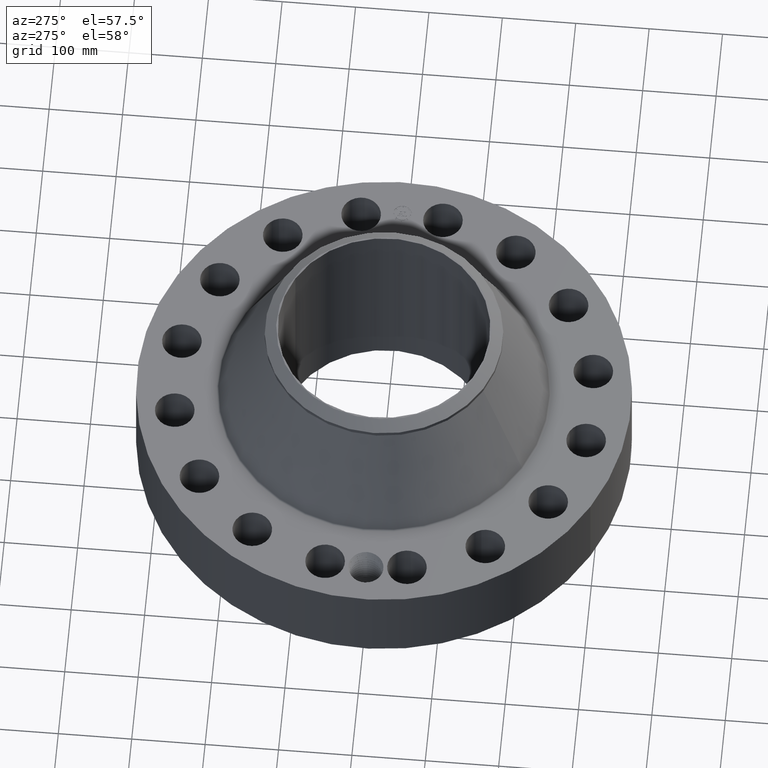
[diagram: clean part render]
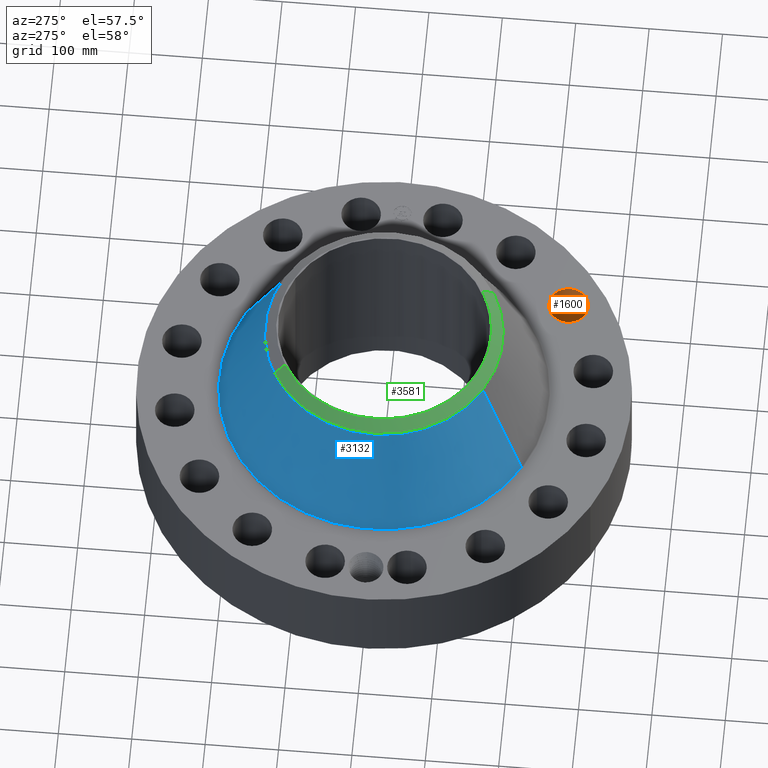
[diagram: same view with three faces highlighted in distinct colors, each labeled with its STEP entity id]
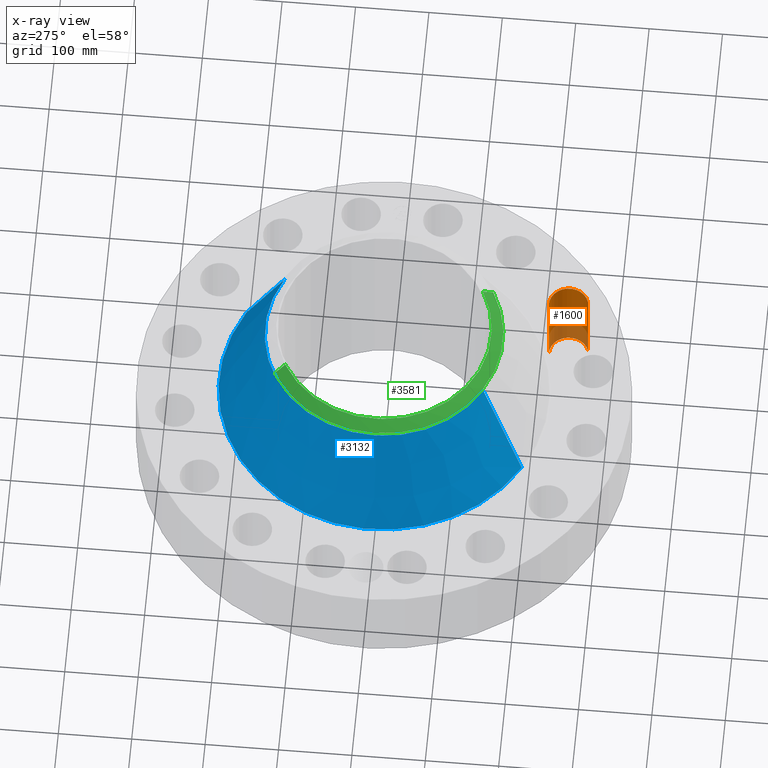
[diagram: x-ray of the same camera — body ghosted, the three highlighted faces saturated]
A machine part, auxiliary view with three faces highlighted in distinct colors.
The next image is the same camera in x-ray (body ghosted, the three faces saturated) — at least one of them is partly hidden behind the body in this view.
Their STEP definitions:

[orange] entity #1600 — the highlighted cylindrical surface (edge-blend (fillet) strip) has radius 26.924 mm, axis along (0, -0, -1).
#298=AXIS2_PLACEMENT_3D('Circle Axis2P3D',#296,#297,$) ;
#780=AXIS2_PLACEMENT_3D('Circle Axis2P3D',#778,#779,$) ;
#1582=AXIS2_PLACEMENT_3D('Cylinder Axis2P3D',#1579,#1580,#1581) ;
#296=CARTESIAN_POINT('Axis2P3D Location',(6.2501651215,-9.35403313844,0.250000000001)) ;
#300=CARTESIAN_POINT('Vertex',(5.95173321848,-8.33691053065,0.250000000001)) ;
#302=CARTESIAN_POINT('Vertex',(6.54859702451,-10.3711557462,0.250000000001)) ;
#773=CARTESIAN_POINT('Vertex',(6.54859702451,-10.3711557462,5.13000000002)) ;
#775=CARTESIAN_POINT('Vertex',(5.95173321848,-8.33691053065,5.13000000002)) ;
#778=CARTESIAN_POINT('Axis2P3D Location',(6.2501651215,-9.35403313844,5.13000000002)) ;
#1579=CARTESIAN_POINT('Axis2P3D Location',(6.2501651215,-9.35403313844,5.12606299215)) ;
#1584=CARTESIAN_POINT('Line Origine',(5.95173321848,-8.33691053065,2.69000000001)) ;
#1589=CARTESIAN_POINT('Line Origine',(6.54859702451,-10.3711557462,2.69000000001)) ;
#297=DIRECTION('Axis2P3D Direction',(0.,0.,-0.0393700787402)) ;
#779=DIRECTION('Axis2P3D Direction',(0.,0.,-0.0393700787402)) ;
#1580=DIRECTION('Axis2P3D Direction',(0.,-0.,-0.0393700787402)) ;
#1581=DIRECTION('Axis2P3D XDirection',(0.0110842335096,-0.0377775444876,0.)) ;
#1585=DIRECTION('Vector Direction',(0.,0.,-0.0393700787402)) ;
#1590=DIRECTION('Vector Direction',(0.,0.,-0.0393700787402)) ;
#1586=VECTOR('Line Direction',#1585,0.0393700787402) ;
#1591=VECTOR('Line Direction',#1590,0.0393700787402) ;
#1595=ORIENTED_EDGE('',*,*,#1588,.F.) ;
#1596=ORIENTED_EDGE('',*,*,#304,.T.) ;
#1597=ORIENTED_EDGE('',*,*,#1593,.T.) ;
#1598=ORIENTED_EDGE('',*,*,#782,.F.) ;
#1600=ADVANCED_FACE('PartBody',(#1599),#1583,.F.) ;
#299=CIRCLE('generated circle',#298,1.06) ;
#781=CIRCLE('generated circle',#780,1.06) ;
#1583=CYLINDRICAL_SURFACE('generated cylinder',#1582,1.06) ;
#304=EDGE_CURVE('',#301,#303,#299,.T.) ;
#782=EDGE_CURVE('',#776,#774,#781,.T.) ;
#1588=EDGE_CURVE('',#301,#776,#1587,.F.) ;
#1593=EDGE_CURVE('',#303,#774,#1592,.F.) ;
#1594=EDGE_LOOP('',(#1595,#1596,#1597,#1598)) ;
#1599=FACE_OUTER_BOUND('',#1594,.T.) ;
#1587=LINE('Line',#1584,#1586) ;
#1592=LINE('Line',#1589,#1591) ;
#301=VERTEX_POINT('',#300) ;
#303=VERTEX_POINT('',#302) ;
#774=VERTEX_POINT('',#773) ;
#776=VERTEX_POINT('',#775) ;

[blue] entity #3132 — the highlighted conical surface has half-angle 24.302 deg.
#2378=AXIS2_PLACEMENT_3D('Circle Axis2P3D',#2376,#2377,$) ;
#3093=AXIS2_PLACEMENT_3D('Cone Axis2P3D',#3090,#3091,#3092) ;
#3123=AXIS2_PLACEMENT_3D('Circle Axis2P3D',#3121,#3122,$) ;
#2354=CARTESIAN_POINT('Vertex',(4.23961428836,7.76056189963,5.20061377058)) ;
#2361=CARTESIAN_POINT('Vertex',(-4.23961428836,-7.76056189963,5.20061377058)) ;
#2376=CARTESIAN_POINT('Axis2P3D Location',(0.,0.,5.20061377058)) ;
#3090=CARTESIAN_POINT('Axis2P3D Location',(0.,0.,10.6662780077)) ;
#3095=CARTESIAN_POINT('Line Origine',(3.64797604848,6.67757536585,7.93344588916)) ;
#3099=CARTESIAN_POINT('Vertex',(3.05633780861,5.59458883207,10.6662780077)) ;
#3106=CARTESIAN_POINT('Vertex',(-3.05633780861,-5.59458883207,10.6662780077)) ;
#3109=CARTESIAN_POINT('Line Origine',(-3.64797604848,-6.67757536585,7.93344588916)) ;
#3121=CARTESIAN_POINT('Axis2P3D Location',(0.,0.,10.6662780077)) ;
#2377=DIRECTION('Axis2P3D Direction',(0.,0.,-0.0393700787402)) ;
#3091=DIRECTION('Axis2P3D Direction',(0.,0.,-0.0393700787402)) ;
#3092=DIRECTION('Axis2P3D XDirection',(-0.0188750212049,-0.0345504945626,0.)) ;
#3096=DIRECTION('Vector Direction',(0.00776805106537,0.0142193220968,-0.0358813511697)) ;
#3110=DIRECTION('Vector Direction',(-0.00776805106537,-0.0142193220968,-0.0358813511697)) ;
#3122=DIRECTION('Axis2P3D Direction',(0.,0.,-0.0393700787402)) ;
#3097=VECTOR('Line Direction',#3096,0.0393700787402) ;
#3111=VECTOR('Line Direction',#3110,0.0393700787402) ;
#3127=ORIENTED_EDGE('',*,*,#2380,.F.) ;
#3128=ORIENTED_EDGE('',*,*,#3113,.T.) ;
#3129=ORIENTED_EDGE('',*,*,#3125,.T.) ;
#3130=ORIENTED_EDGE('',*,*,#3101,.F.) ;
#3132=ADVANCED_FACE('PartBody',(#3131),#3094,.T.) ;
#2379=CIRCLE('generated circle',#2378,8.84311315726) ;
#3124=CIRCLE('generated circle',#3123,6.37500000003) ;
#3094=CONICAL_SURFACE('Cone',#3093,6.37500000003,0.424156212514) ;
#2380=EDGE_CURVE('',#2362,#2355,#2379,.T.) ;
#3101=EDGE_CURVE('',#2355,#3100,#3098,.F.) ;
#3113=EDGE_CURVE('',#2362,#3107,#3112,.F.) ;
#3125=EDGE_CURVE('',#3107,#3100,#3124,.T.) ;
#3126=EDGE_LOOP('',(#3127,#3128,#3129,#3130)) ;
#3131=FACE_OUTER_BOUND('',#3126,.T.) ;
#3098=LINE('Line',#3095,#3097) ;
#3112=LINE('Line',#3109,#3111) ;
#2355=VERTEX_POINT('',#2354) ;
#2362=VERTEX_POINT('',#2361) ;
#3100=VERTEX_POINT('',#3099) ;
#3107=VERTEX_POINT('',#3106) ;

[green] entity #3581 — the highlighted conical surface has half-angle 52.5 deg.
#2710=AXIS2_PLACEMENT_3D('Circle Axis2P3D',#2708,#2709,$) ;
#3546=AXIS2_PLACEMENT_3D('Cone Axis2P3D',#3543,#3544,#3545) ;
#3564=AXIS2_PLACEMENT_3D('Circle Axis2P3D',#3562,#3563,$) ;
#3571=AXIS2_PLACEMENT_3D('Circle Axis2P3D',#3569,#3570,$) ;
#2703=CARTESIAN_POINT('Vertex',(2.76424308046,-5.05991301862,11.37)) ;
#2705=CARTESIAN_POINT('Vertex',(-2.76424308046,5.05991301862,11.37)) ;
#2708=CARTESIAN_POINT('Axis2P3D Location',(0.,0.,11.37)) ;
#3543=CARTESIAN_POINT('Axis2P3D Location',(0.,0.,11.37)) ;
#3548=CARTESIAN_POINT('Line Origine',(2.91029044454,-5.32725092534,11.1362492401)) ;
#3552=CARTESIAN_POINT('Vertex',(3.05633780861,-5.59458883207,10.9024984802)) ;
#3555=CARTESIAN_POINT('Line Origine',(-2.91029044454,5.32725092534,11.1362492401)) ;
#3559=CARTESIAN_POINT('Vertex',(-3.05633780861,5.59458883207,10.9024984802)) ;
#3562=CARTESIAN_POINT('Axis2P3D Location',(0.,0.,10.9024984802)) ;
#3566=CARTESIAN_POINT('Vertex',(-3.05633780861,-5.59458883207,10.9024984802)) ;
#3569=CARTESIAN_POINT('Axis2P3D Location',(0.,0.,10.9024984802)) ;
#2709=DIRECTION('Axis2P3D Direction',(0.,0.,-0.0393700787402)) ;
#3544=DIRECTION('Axis2P3D Direction',(-0.,-0.,-0.0393700787402)) ;
#3545=DIRECTION('Axis2P3D XDirection',(-0.0188750212049,0.0345504945626,0.)) ;
#3549=DIRECTION('Vector Direction',(0.014974561121,-0.02741075027,-0.023966985394)) ;
#3556=DIRECTION('Vector Direction',(-0.014974561121,0.02741075027,-0.023966985394)) ;
#3563=DIRECTION('Axis2P3D Direction',(0.,0.,-0.0393700787402)) ;
#3570=DIRECTION('Axis2P3D Direction',(0.,0.,-0.0393700787402)) ;
#3550=VECTOR('Line Direction',#3549,0.0393700787402) ;
#3557=VECTOR('Line Direction',#3556,0.0393700787402) ;
#3575=ORIENTED_EDGE('',*,*,#3554,.F.) ;
#3576=ORIENTED_EDGE('',*,*,#2712,.F.) ;
#3577=ORIENTED_EDGE('',*,*,#3561,.T.) ;
#3578=ORIENTED_EDGE('',*,*,#3568,.T.) ;
#3579=ORIENTED_EDGE('',*,*,#3573,.F.) ;
#3581=ADVANCED_FACE('PartBody',(#3580),#3547,.T.) ;
#2711=CIRCLE('generated circle',#2710,5.7657401575) ;
#3565=CIRCLE('generated circle',#3564,6.37500000003) ;
#3572=CIRCLE('generated circle',#3571,6.37500000003) ;
#3547=CONICAL_SURFACE('Cone',#3546,5.7657401575,0.916297857297) ;
#2712=EDGE_CURVE('',#2706,#2704,#2711,.F.) ;
#3554=EDGE_CURVE('',#2704,#3553,#3551,.T.) ;
#3561=EDGE_CURVE('',#2706,#3560,#3558,.T.) ;
#3568=EDGE_CURVE('',#3560,#3567,#3565,.F.) ;
#3573=EDGE_CURVE('',#3553,#3567,#3572,.T.) ;
#3574=EDGE_LOOP('',(#3575,#3576,#3577,#3578,#3579)) ;
#3580=FACE_OUTER_BOUND('',#3574,.T.) ;
#3551=LINE('Line',#3548,#3550) ;
#3558=LINE('Line',#3555,#3557) ;
#2704=VERTEX_POINT('',#2703) ;
#2706=VERTEX_POINT('',#2705) ;
#3553=VERTEX_POINT('',#3552) ;
#3560=VERTEX_POINT('',#3559) ;
#3567=VERTEX_POINT('',#3566) ;